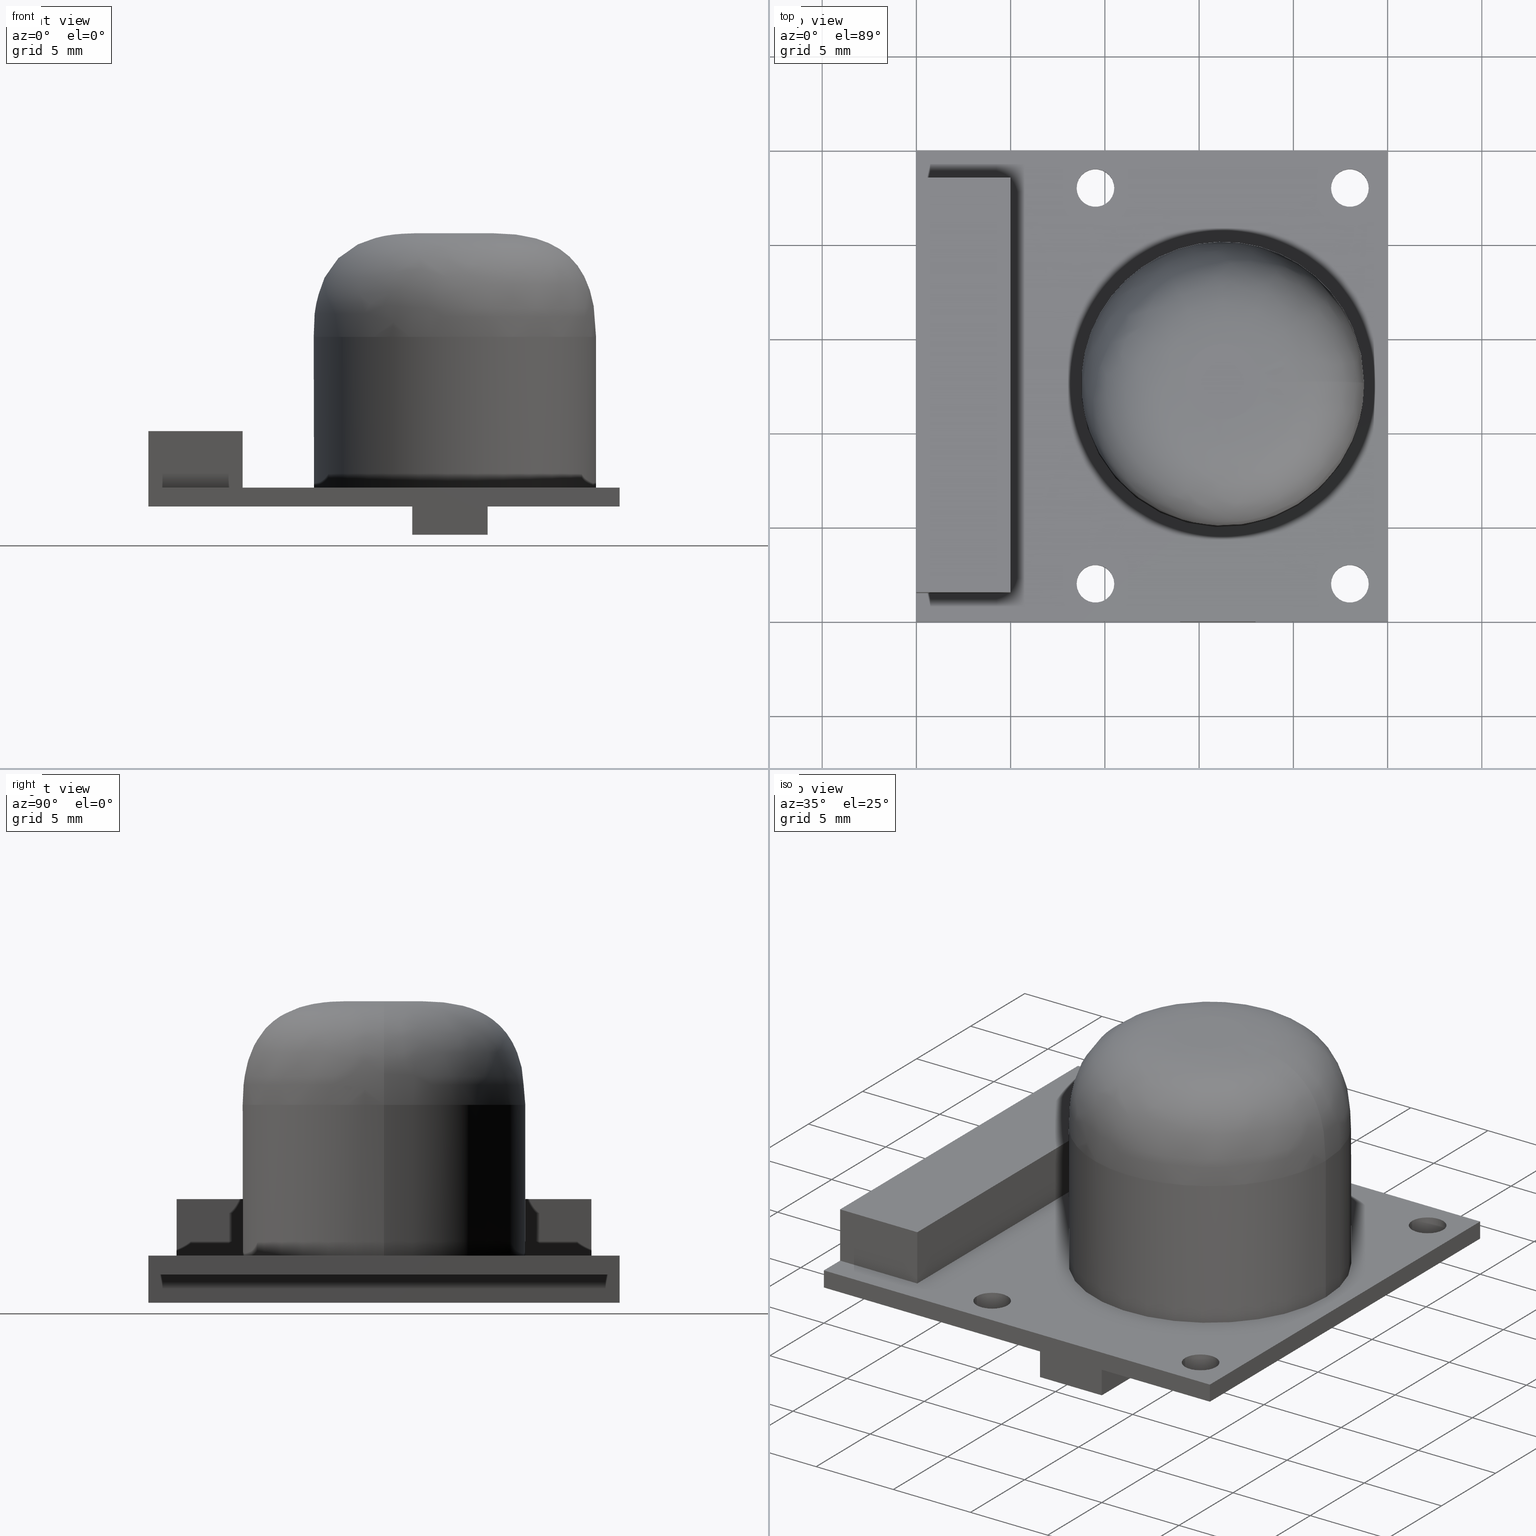
[diagram: canonical four-view strip — front | top / right | iso, engineering-drawing reading convention]
A machine part, canonical four-view strip (front | top / right | iso — engineering-drawing reading convention). The complete STEP part file that produces these views, byte-faithful:
ISO-10303-21;
HEADER;
/* Generated by software containing ST-Developer
 * from STEP Tools, Inc. (www.steptools.com) 
 */

FILE_DESCRIPTION(
/* description */ (''),
/* implementation_level */ '2;1');

FILE_NAME(
/* name */ 'IMX219.step',
/* time_stamp */ '2024-09-27T16:26:59+02:00',
/* author */ (''),
/* organization */ (''),
/* preprocessor_version */ 'ST-DEVELOPER v20',
/* originating_system */ 'Autodesk Translation Framework v13.20.0.188',

/* authorisation */ '');

FILE_SCHEMA (('AUTOMOTIVE_DESIGN { 1 0 10303 214 3 1 1 }'));
ENDSEC;

DATA;
#10=MECHANICAL_DESIGN_GEOMETRIC_PRESENTATION_REPRESENTATION('',(#13),#800);
#11=SHAPE_REPRESENTATION_RELATIONSHIP('SRR','None',#807,#12);
#12=ADVANCED_BREP_SHAPE_REPRESENTATION('',(#14),#799);
#13=STYLED_ITEM('',(#817),#14);
#14=MANIFOLD_SOLID_BREP('Body1',#405);
#15=FACE_BOUND('',#163,.T.);
#16=FACE_BOUND('',#164,.T.);
#17=FACE_BOUND('',#170,.T.);
#18=FACE_BOUND('',#171,.T.);
#19=FACE_BOUND('',#172,.T.);
#20=FACE_BOUND('',#173,.T.);
#21=FACE_BOUND('',#174,.T.);
#22=FACE_BOUND('',#184,.T.);
#23=FACE_BOUND('',#185,.T.);
#24=CIRCLE('',#421,7.5);
#25=CIRCLE('',#426,1.);
#26=CIRCLE('',#427,1.);
#27=CIRCLE('',#433,1.);
#28=CIRCLE('',#434,1.);
#29=CIRCLE('',#435,1.);
#30=CIRCLE('',#436,1.);
#31=CIRCLE('',#438,1.);
#32=CIRCLE('',#441,1.);
#33=LINE('',#697,#74);
#34=LINE('',#702,#75);
#35=LINE('',#704,#76);
#36=LINE('',#706,#77);
#37=LINE('',#707,#78);
#38=LINE('',#710,#79);
#39=LINE('',#712,#80);
#40=LINE('',#713,#81);
#41=LINE('',#716,#82);
#42=LINE('',#718,#83);
#43=LINE('',#719,#84);
#44=LINE('',#722,#85);
#45=LINE('',#724,#86);
#46=LINE('',#725,#87);
#47=LINE('',#733,#88);
#48=LINE('',#735,#89);
#49=LINE('',#737,#90);
#50=LINE('',#738,#91);
#51=LINE('',#741,#92);
#52=LINE('',#743,#93);
#53=LINE('',#744,#94);
#54=LINE('',#747,#95);
#55=LINE('',#749,#96);
#56=LINE('',#750,#97);
#57=LINE('',#752,#98);
#58=LINE('',#755,#99);
#59=LINE('',#757,#100);
#60=LINE('',#759,#101);
#61=LINE('',#761,#102);
#62=LINE('',#762,#103);
#63=LINE('',#773,#104);
#64=LINE('',#776,#105);
#65=LINE('',#779,#106);
#66=LINE('',#782,#107);
#67=LINE('',#785,#108);
#68=LINE('',#786,#109);
#69=LINE('',#787,#110);
#70=LINE('',#790,#111);
#71=LINE('',#791,#112);
#72=LINE('',#793,#113);
#73=LINE('',#794,#114);
#74=VECTOR('',#454,7.5);
#75=VECTOR('',#459,10.);
#76=VECTOR('',#460,10.);
#77=VECTOR('',#461,10.);
#78=VECTOR('',#462,10.);
#79=VECTOR('',#465,10.);
#80=VECTOR('',#466,10.);
#81=VECTOR('',#467,10.);
#82=VECTOR('',#470,10.);
#83=VECTOR('',#471,10.);
#84=VECTOR('',#472,10.);
#85=VECTOR('',#475,10.);
#86=VECTOR('',#476,10.);
#87=VECTOR('',#477,10.);
#88=VECTOR('',#484,10.);
#89=VECTOR('',#485,10.);
#90=VECTOR('',#486,10.);
#91=VECTOR('',#487,10.);
#92=VECTOR('',#490,10.);
#93=VECTOR('',#491,10.);
#94=VECTOR('',#492,10.);
#95=VECTOR('',#495,10.);
#96=VECTOR('',#496,10.);
#97=VECTOR('',#497,10.);
#98=VECTOR('',#500,10.);
#99=VECTOR('',#503,10.);
#100=VECTOR('',#504,10.);
#101=VECTOR('',#505,10.);
#102=VECTOR('',#506,10.);
#103=VECTOR('',#507,10.);
#104=VECTOR('',#518,1.);
#105=VECTOR('',#523,1.);
#106=VECTOR('',#526,1.);
#107=VECTOR('',#531,1.);
#108=VECTOR('',#534,10.);
#109=VECTOR('',#535,10.);
#110=VECTOR('',#536,10.);
#111=VECTOR('',#539,10.);
#112=VECTOR('',#540,10.);
#113=VECTOR('',#543,10.);
#114=VECTOR('',#544,10.);
#115=CYLINDRICAL_SURFACE('',#420,7.5);
#116=CYLINDRICAL_SURFACE('',#437,1.);
#117=CYLINDRICAL_SURFACE('',#439,1.);
#118=CYLINDRICAL_SURFACE('',#440,1.);
#119=CYLINDRICAL_SURFACE('',#442,1.);
#120=PLANE('',#419);
#121=PLANE('',#422);
#122=PLANE('',#423);
#123=PLANE('',#424);
#124=PLANE('',#425);
#125=PLANE('',#428);
#126=PLANE('',#429);
#127=PLANE('',#430);
#128=PLANE('',#431);
#129=PLANE('',#432);
#130=PLANE('',#443);
#131=PLANE('',#444);
#132=PLANE('',#445);
#133=PLANE('',#446);
#134=PLANE('',#447);
#135=FACE_OUTER_BOUND('',#156,.T.);
#136=FACE_OUTER_BOUND('',#157,.T.);
#137=FACE_OUTER_BOUND('',#158,.T.);
#138=FACE_OUTER_BOUND('',#159,.T.);
#139=FACE_OUTER_BOUND('',#160,.T.);
#140=FACE_OUTER_BOUND('',#161,.T.);
#141=FACE_OUTER_BOUND('',#162,.T.);
#142=FACE_OUTER_BOUND('',#165,.T.);
#143=FACE_OUTER_BOUND('',#166,.T.);
#144=FACE_OUTER_BOUND('',#167,.T.);
#145=FACE_OUTER_BOUND('',#168,.T.);
#146=FACE_OUTER_BOUND('',#169,.T.);
#147=FACE_OUTER_BOUND('',#175,.T.);
#148=FACE_OUTER_BOUND('',#176,.T.);
#149=FACE_OUTER_BOUND('',#177,.T.);
#150=FACE_OUTER_BOUND('',#178,.T.);
#151=FACE_OUTER_BOUND('',#179,.T.);
#152=FACE_OUTER_BOUND('',#180,.T.);
#153=FACE_OUTER_BOUND('',#181,.T.);
#154=FACE_OUTER_BOUND('',#182,.T.);
#155=FACE_OUTER_BOUND('',#183,.T.);
#156=EDGE_LOOP('',(#277,#278,#279,#280));
#157=EDGE_LOOP('',(#281));
#158=EDGE_LOOP('',(#282,#283,#284,#285));
#159=EDGE_LOOP('',(#286,#287,#288,#289));
#160=EDGE_LOOP('',(#290,#291,#292,#293));
#161=EDGE_LOOP('',(#294,#295,#296,#297));
#162=EDGE_LOOP('',(#298,#299,#300,#301));
#163=EDGE_LOOP('',(#302));
#164=EDGE_LOOP('',(#303));
#165=EDGE_LOOP('',(#304,#305,#306,#307));
#166=EDGE_LOOP('',(#308,#309,#310,#311));
#167=EDGE_LOOP('',(#312,#313,#314,#315));
#168=EDGE_LOOP('',(#316,#317,#318,#319));
#169=EDGE_LOOP('',(#320,#321,#322,#323,#324,#325,#326,#327));
#170=EDGE_LOOP('',(#328));
#171=EDGE_LOOP('',(#329));
#172=EDGE_LOOP('',(#330));
#173=EDGE_LOOP('',(#331));
#174=EDGE_LOOP('',(#332));
#175=EDGE_LOOP('',(#333,#334,#335,#336));
#176=EDGE_LOOP('',(#337,#338,#339,#340));
#177=EDGE_LOOP('',(#341,#342,#343,#344));
#178=EDGE_LOOP('',(#345,#346,#347,#348));
#179=EDGE_LOOP('',(#349,#350,#351,#352,#353,#354,#355,#356));
#180=EDGE_LOOP('',(#357,#358,#359,#360));
#181=EDGE_LOOP('',(#361,#362,#363,#364,#365,#366,#367,#368));
#182=EDGE_LOOP('',(#369,#370,#371,#372,#373,#374,#375,#376));
#183=EDGE_LOOP('',(#377,#378,#379,#380));
#184=EDGE_LOOP('',(#381));
#185=EDGE_LOOP('',(#382));
#186=B_SPLINE_CURVE_WITH_KNOTS('',3,(#654,#655,#656,#657,#658,#659),
 .UNSPECIFIED.,.F.,.F.,(4,1,1,4),(0.,0.285714285714286,0.571428571428571,
1.),.UNSPECIFIED.);
#187=B_SPLINE_CURVE_WITH_KNOTS('',3,(#660,#661,#662,#663,#664,#665,#666,
#667,#668,#669,#670,#671,#672,#673,#674,#675,#676),.UNSPECIFIED.,.T.,.F.,
(4,1,1,1,1,1,1,1,1,1,1,1,1,1,4),(0.,0.0893568644865318,0.178713728973064,
0.268070593459595,0.357427457946127,0.47656994392817,0.536141186919191,
0.655283672901233,0.714854915892254,0.804211780378786,0.893568644865318,
0.98292550935185,1.07228237383838,1.16163923832491,1.25099610281145),
 .UNSPECIFIED.);
#188=B_SPLINE_CURVE_WITH_KNOTS('',3,(#677,#678,#679,#680,#681,#682,#683,
#684,#685,#686,#687,#688,#689,#690,#691,#692,#693),.UNSPECIFIED.,.T.,.F.,
(4,1,1,1,1,1,1,1,1,1,1,1,1,1,4),(-1.25099610281145,-1.16163923832491,-1.07228237383838,
-0.98292550935185,-0.893568644865318,-0.804211780378786,-0.714854915892254,
-0.655283672901233,-0.536141186919191,-0.47656994392817,-0.357427457946127,
-0.268070593459595,-0.178713728973064,-0.0893568644865318,0.),
 .UNSPECIFIED.);
#189=VERTEX_POINT('',#652);
#190=VERTEX_POINT('',#653);
#191=VERTEX_POINT('',#696);
#192=VERTEX_POINT('',#700);
#193=VERTEX_POINT('',#701);
#194=VERTEX_POINT('',#703);
#195=VERTEX_POINT('',#705);
#196=VERTEX_POINT('',#709);
#197=VERTEX_POINT('',#711);
#198=VERTEX_POINT('',#715);
#199=VERTEX_POINT('',#717);
#200=VERTEX_POINT('',#721);
#201=VERTEX_POINT('',#723);
#202=VERTEX_POINT('',#726);
#203=VERTEX_POINT('',#728);
#204=VERTEX_POINT('',#731);
#205=VERTEX_POINT('',#732);
#206=VERTEX_POINT('',#734);
#207=VERTEX_POINT('',#736);
#208=VERTEX_POINT('',#740);
#209=VERTEX_POINT('',#742);
#210=VERTEX_POINT('',#746);
#211=VERTEX_POINT('',#748);
#212=VERTEX_POINT('',#754);
#213=VERTEX_POINT('',#756);
#214=VERTEX_POINT('',#758);
#215=VERTEX_POINT('',#760);
#216=VERTEX_POINT('',#763);
#217=VERTEX_POINT('',#765);
#218=VERTEX_POINT('',#767);
#219=VERTEX_POINT('',#769);
#220=VERTEX_POINT('',#772);
#221=VERTEX_POINT('',#778);
#222=VERTEX_POINT('',#784);
#223=VERTEX_POINT('',#789);
#224=EDGE_CURVE('',#189,#190,#186,.T.);
#225=EDGE_CURVE('',#190,#190,#187,.T.);
#226=EDGE_CURVE('',#189,#189,#188,.T.);
#227=EDGE_CURVE('',#189,#191,#33,.T.);
#228=EDGE_CURVE('',#191,#191,#24,.T.);
#229=EDGE_CURVE('',#192,#193,#34,.T.);
#230=EDGE_CURVE('',#194,#193,#35,.T.);
#231=EDGE_CURVE('',#194,#195,#36,.T.);
#232=EDGE_CURVE('',#192,#195,#37,.T.);
#233=EDGE_CURVE('',#193,#196,#38,.T.);
#234=EDGE_CURVE('',#197,#196,#39,.T.);
#235=EDGE_CURVE('',#197,#194,#40,.T.);
#236=EDGE_CURVE('',#196,#198,#41,.T.);
#237=EDGE_CURVE('',#199,#198,#42,.T.);
#238=EDGE_CURVE('',#199,#197,#43,.T.);
#239=EDGE_CURVE('',#200,#195,#44,.T.);
#240=EDGE_CURVE('',#201,#200,#45,.T.);
#241=EDGE_CURVE('',#192,#201,#46,.T.);
#242=EDGE_CURVE('',#202,#202,#25,.T.);
#243=EDGE_CURVE('',#203,#203,#26,.T.);
#244=EDGE_CURVE('',#204,#205,#47,.T.);
#245=EDGE_CURVE('',#204,#206,#48,.T.);
#246=EDGE_CURVE('',#207,#206,#49,.T.);
#247=EDGE_CURVE('',#205,#207,#50,.T.);
#248=EDGE_CURVE('',#205,#208,#51,.T.);
#249=EDGE_CURVE('',#209,#207,#52,.T.);
#250=EDGE_CURVE('',#208,#209,#53,.T.);
#251=EDGE_CURVE('',#208,#210,#54,.T.);
#252=EDGE_CURVE('',#211,#209,#55,.T.);
#253=EDGE_CURVE('',#210,#211,#56,.T.);
#254=EDGE_CURVE('',#206,#211,#57,.T.);
#255=EDGE_CURVE('',#210,#212,#58,.T.);
#256=EDGE_CURVE('',#212,#213,#59,.T.);
#257=EDGE_CURVE('',#213,#214,#60,.T.);
#258=EDGE_CURVE('',#214,#215,#61,.T.);
#259=EDGE_CURVE('',#215,#204,#62,.T.);
#260=EDGE_CURVE('',#216,#216,#27,.T.);
#261=EDGE_CURVE('',#217,#217,#28,.T.);
#262=EDGE_CURVE('',#218,#218,#29,.T.);
#263=EDGE_CURVE('',#219,#219,#30,.T.);
#264=EDGE_CURVE('',#216,#220,#63,.T.);
#265=EDGE_CURVE('',#220,#220,#31,.T.);
#266=EDGE_CURVE('',#217,#203,#64,.T.);
#267=EDGE_CURVE('',#218,#221,#65,.T.);
#268=EDGE_CURVE('',#221,#221,#32,.T.);
#269=EDGE_CURVE('',#219,#202,#66,.T.);
#270=EDGE_CURVE('',#222,#198,#67,.T.);
#271=EDGE_CURVE('',#201,#215,#68,.T.);
#272=EDGE_CURVE('',#222,#214,#69,.T.);
#273=EDGE_CURVE('',#223,#222,#70,.T.);
#274=EDGE_CURVE('',#223,#213,#71,.T.);
#275=EDGE_CURVE('',#199,#223,#72,.T.);
#276=EDGE_CURVE('',#200,#212,#73,.T.);
#277=ORIENTED_EDGE('',*,*,#224,.T.);
#278=ORIENTED_EDGE('',*,*,#225,.T.);
#279=ORIENTED_EDGE('',*,*,#224,.F.);
#280=ORIENTED_EDGE('',*,*,#226,.T.);
#281=ORIENTED_EDGE('',*,*,#225,.F.);
#282=ORIENTED_EDGE('',*,*,#226,.F.);
#283=ORIENTED_EDGE('',*,*,#227,.T.);
#284=ORIENTED_EDGE('',*,*,#228,.F.);
#285=ORIENTED_EDGE('',*,*,#227,.F.);
#286=ORIENTED_EDGE('',*,*,#229,.T.);
#287=ORIENTED_EDGE('',*,*,#230,.F.);
#288=ORIENTED_EDGE('',*,*,#231,.T.);
#289=ORIENTED_EDGE('',*,*,#232,.F.);
#290=ORIENTED_EDGE('',*,*,#233,.T.);
#291=ORIENTED_EDGE('',*,*,#234,.F.);
#292=ORIENTED_EDGE('',*,*,#235,.T.);
#293=ORIENTED_EDGE('',*,*,#230,.T.);
#294=ORIENTED_EDGE('',*,*,#236,.T.);
#295=ORIENTED_EDGE('',*,*,#237,.F.);
#296=ORIENTED_EDGE('',*,*,#238,.T.);
#297=ORIENTED_EDGE('',*,*,#234,.T.);
#298=ORIENTED_EDGE('',*,*,#232,.T.);
#299=ORIENTED_EDGE('',*,*,#239,.F.);
#300=ORIENTED_EDGE('',*,*,#240,.F.);
#301=ORIENTED_EDGE('',*,*,#241,.F.);
#302=ORIENTED_EDGE('',*,*,#242,.F.);
#303=ORIENTED_EDGE('',*,*,#243,.F.);
#304=ORIENTED_EDGE('',*,*,#244,.F.);
#305=ORIENTED_EDGE('',*,*,#245,.T.);
#306=ORIENTED_EDGE('',*,*,#246,.F.);
#307=ORIENTED_EDGE('',*,*,#247,.F.);
#308=ORIENTED_EDGE('',*,*,#248,.F.);
#309=ORIENTED_EDGE('',*,*,#247,.T.);
#310=ORIENTED_EDGE('',*,*,#249,.F.);
#311=ORIENTED_EDGE('',*,*,#250,.F.);
#312=ORIENTED_EDGE('',*,*,#251,.F.);
#313=ORIENTED_EDGE('',*,*,#250,.T.);
#314=ORIENTED_EDGE('',*,*,#252,.F.);
#315=ORIENTED_EDGE('',*,*,#253,.F.);
#316=ORIENTED_EDGE('',*,*,#252,.T.);
#317=ORIENTED_EDGE('',*,*,#249,.T.);
#318=ORIENTED_EDGE('',*,*,#246,.T.);
#319=ORIENTED_EDGE('',*,*,#254,.T.);
#320=ORIENTED_EDGE('',*,*,#244,.T.);
#321=ORIENTED_EDGE('',*,*,#248,.T.);
#322=ORIENTED_EDGE('',*,*,#251,.T.);
#323=ORIENTED_EDGE('',*,*,#255,.T.);
#324=ORIENTED_EDGE('',*,*,#256,.T.);
#325=ORIENTED_EDGE('',*,*,#257,.T.);
#326=ORIENTED_EDGE('',*,*,#258,.T.);
#327=ORIENTED_EDGE('',*,*,#259,.T.);
#328=ORIENTED_EDGE('',*,*,#260,.T.);
#329=ORIENTED_EDGE('',*,*,#261,.T.);
#330=ORIENTED_EDGE('',*,*,#262,.T.);
#331=ORIENTED_EDGE('',*,*,#263,.T.);
#332=ORIENTED_EDGE('',*,*,#228,.T.);
#333=ORIENTED_EDGE('',*,*,#260,.F.);
#334=ORIENTED_EDGE('',*,*,#264,.T.);
#335=ORIENTED_EDGE('',*,*,#265,.T.);
#336=ORIENTED_EDGE('',*,*,#264,.F.);
#337=ORIENTED_EDGE('',*,*,#261,.F.);
#338=ORIENTED_EDGE('',*,*,#266,.T.);
#339=ORIENTED_EDGE('',*,*,#243,.T.);
#340=ORIENTED_EDGE('',*,*,#266,.F.);
#341=ORIENTED_EDGE('',*,*,#262,.F.);
#342=ORIENTED_EDGE('',*,*,#267,.T.);
#343=ORIENTED_EDGE('',*,*,#268,.T.);
#344=ORIENTED_EDGE('',*,*,#267,.F.);
#345=ORIENTED_EDGE('',*,*,#263,.F.);
#346=ORIENTED_EDGE('',*,*,#269,.T.);
#347=ORIENTED_EDGE('',*,*,#242,.T.);
#348=ORIENTED_EDGE('',*,*,#269,.F.);
#349=ORIENTED_EDGE('',*,*,#270,.T.);
#350=ORIENTED_EDGE('',*,*,#236,.F.);
#351=ORIENTED_EDGE('',*,*,#233,.F.);
#352=ORIENTED_EDGE('',*,*,#229,.F.);
#353=ORIENTED_EDGE('',*,*,#241,.T.);
#354=ORIENTED_EDGE('',*,*,#271,.T.);
#355=ORIENTED_EDGE('',*,*,#258,.F.);
#356=ORIENTED_EDGE('',*,*,#272,.F.);
#357=ORIENTED_EDGE('',*,*,#273,.T.);
#358=ORIENTED_EDGE('',*,*,#272,.T.);
#359=ORIENTED_EDGE('',*,*,#257,.F.);
#360=ORIENTED_EDGE('',*,*,#274,.F.);
#361=ORIENTED_EDGE('',*,*,#239,.T.);
#362=ORIENTED_EDGE('',*,*,#231,.F.);
#363=ORIENTED_EDGE('',*,*,#235,.F.);
#364=ORIENTED_EDGE('',*,*,#238,.F.);
#365=ORIENTED_EDGE('',*,*,#275,.T.);
#366=ORIENTED_EDGE('',*,*,#274,.T.);
#367=ORIENTED_EDGE('',*,*,#256,.F.);
#368=ORIENTED_EDGE('',*,*,#276,.F.);
#369=ORIENTED_EDGE('',*,*,#240,.T.);
#370=ORIENTED_EDGE('',*,*,#276,.T.);
#371=ORIENTED_EDGE('',*,*,#255,.F.);
#372=ORIENTED_EDGE('',*,*,#253,.T.);
#373=ORIENTED_EDGE('',*,*,#254,.F.);
#374=ORIENTED_EDGE('',*,*,#245,.F.);
#375=ORIENTED_EDGE('',*,*,#259,.F.);
#376=ORIENTED_EDGE('',*,*,#271,.F.);
#377=ORIENTED_EDGE('',*,*,#237,.T.);
#378=ORIENTED_EDGE('',*,*,#270,.F.);
#379=ORIENTED_EDGE('',*,*,#273,.F.);
#380=ORIENTED_EDGE('',*,*,#275,.F.);
#381=ORIENTED_EDGE('',*,*,#268,.F.);
#382=ORIENTED_EDGE('',*,*,#265,.F.);
#383=B_SPLINE_SURFACE_WITH_KNOTS('',3,3,((#550,#551,#552,#553,#554,#555,
#556,#557,#558,#559,#560,#561,#562,#563,#564,#565,#566),(#567,#568,#569,
#570,#571,#572,#573,#574,#575,#576,#577,#578,#579,#580,#581,#582,#583),
(#584,#585,#586,#587,#588,#589,#590,#591,#592,#593,#594,#595,#596,#597,
#598,#599,#600),(#601,#602,#603,#604,#605,#606,#607,#608,#609,#610,#611,
#612,#613,#614,#615,#616,#617),(#618,#619,#620,#621,#622,#623,#624,#625,
#626,#627,#628,#629,#630,#631,#632,#633,#634),(#635,#636,#637,#638,#639,
#640,#641,#642,#643,#644,#645,#646,#647,#648,#649,#650,#651)),
 .UNSPECIFIED.,.F.,.T.,.F.,(4,1,1,4),(4,1,1,1,1,1,1,1,1,1,1,1,1,1,4),(0.,
0.285714285714286,0.571428571428571,1.),(0.,0.0893568644865318,0.178713728973064,
0.268070593459595,0.357427457946127,0.47656994392817,0.536141186919191,
0.655283672901233,0.714854915892254,0.804211780378786,0.893568644865318,
0.98292550935185,1.07228237383838,1.16163923832491,1.25099610281145),
 .UNSPECIFIED.);
#384=ADVANCED_FACE('',(#135),#383,.T.);
#385=ADVANCED_FACE('',(#136),#120,.T.);
#386=ADVANCED_FACE('',(#137),#115,.T.);
#387=ADVANCED_FACE('',(#138),#121,.T.);
#388=ADVANCED_FACE('',(#139),#122,.T.);
#389=ADVANCED_FACE('',(#140),#123,.T.);
#390=ADVANCED_FACE('',(#141,#15,#16),#124,.F.);
#391=ADVANCED_FACE('',(#142),#125,.T.);
#392=ADVANCED_FACE('',(#143),#126,.T.);
#393=ADVANCED_FACE('',(#144),#127,.T.);
#394=ADVANCED_FACE('',(#145),#128,.T.);
#395=ADVANCED_FACE('',(#146,#17,#18,#19,#20,#21),#129,.T.);
#396=ADVANCED_FACE('',(#147),#116,.F.);
#397=ADVANCED_FACE('',(#148),#117,.F.);
#398=ADVANCED_FACE('',(#149),#118,.F.);
#399=ADVANCED_FACE('',(#150),#119,.F.);
#400=ADVANCED_FACE('',(#151),#130,.T.);
#401=ADVANCED_FACE('',(#152),#131,.T.);
#402=ADVANCED_FACE('',(#153),#132,.T.);
#403=ADVANCED_FACE('',(#154),#133,.T.);
#404=ADVANCED_FACE('',(#155,#22,#23),#134,.F.);
#405=CLOSED_SHELL('',(#384,#385,#386,#387,#388,#389,#390,#391,#392,#393,
#394,#395,#396,#397,#398,#399,#400,#401,#402,#403,#404));
#406=DERIVED_UNIT_ELEMENT(#408,1.);
#407=DERIVED_UNIT_ELEMENT(#802,-3.);
#408=(
MASS_UNIT()
NAMED_UNIT(*)
SI_UNIT(.KILO.,.GRAM.)
);
#409=DERIVED_UNIT((#406,#407));
#410=MEASURE_REPRESENTATION_ITEM('density measure',
POSITIVE_RATIO_MEASURE(7850.),#409);
#411=PROPERTY_DEFINITION_REPRESENTATION(#416,#413);
#412=PROPERTY_DEFINITION_REPRESENTATION(#417,#414);
#413=REPRESENTATION('material name',(#415),#799);
#414=REPRESENTATION('density',(#410),#799);
#415=DESCRIPTIVE_REPRESENTATION_ITEM('Steel','Steel');
#416=PROPERTY_DEFINITION('material property','material name',#809);
#417=PROPERTY_DEFINITION('material property','density of part',#809);
#418=AXIS2_PLACEMENT_3D('',#549,#448,#449);
#419=AXIS2_PLACEMENT_3D('',#694,#450,#451);
#420=AXIS2_PLACEMENT_3D('',#695,#452,#453);
#421=AXIS2_PLACEMENT_3D('',#698,#455,#456);
#422=AXIS2_PLACEMENT_3D('',#699,#457,#458);
#423=AXIS2_PLACEMENT_3D('',#708,#463,#464);
#424=AXIS2_PLACEMENT_3D('',#714,#468,#469);
#425=AXIS2_PLACEMENT_3D('',#720,#473,#474);
#426=AXIS2_PLACEMENT_3D('',#727,#478,#479);
#427=AXIS2_PLACEMENT_3D('',#729,#480,#481);
#428=AXIS2_PLACEMENT_3D('',#730,#482,#483);
#429=AXIS2_PLACEMENT_3D('',#739,#488,#489);
#430=AXIS2_PLACEMENT_3D('',#745,#493,#494);
#431=AXIS2_PLACEMENT_3D('',#751,#498,#499);
#432=AXIS2_PLACEMENT_3D('',#753,#501,#502);
#433=AXIS2_PLACEMENT_3D('',#764,#508,#509);
#434=AXIS2_PLACEMENT_3D('',#766,#510,#511);
#435=AXIS2_PLACEMENT_3D('',#768,#512,#513);
#436=AXIS2_PLACEMENT_3D('',#770,#514,#515);
#437=AXIS2_PLACEMENT_3D('',#771,#516,#517);
#438=AXIS2_PLACEMENT_3D('',#774,#519,#520);
#439=AXIS2_PLACEMENT_3D('',#775,#521,#522);
#440=AXIS2_PLACEMENT_3D('',#777,#524,#525);
#441=AXIS2_PLACEMENT_3D('',#780,#527,#528);
#442=AXIS2_PLACEMENT_3D('',#781,#529,#530);
#443=AXIS2_PLACEMENT_3D('',#783,#532,#533);
#444=AXIS2_PLACEMENT_3D('',#788,#537,#538);
#445=AXIS2_PLACEMENT_3D('',#792,#541,#542);
#446=AXIS2_PLACEMENT_3D('',#795,#545,#546);
#447=AXIS2_PLACEMENT_3D('',#796,#547,#548);
#448=DIRECTION('axis',(0.,0.,1.));
#449=DIRECTION('refdir',(1.,0.,0.));
#450=DIRECTION('center_axis',(0.,0.,1.));
#451=DIRECTION('ref_axis',(-1.,0.,0.));
#452=DIRECTION('center_axis',(0.,0.,1.));
#453=DIRECTION('ref_axis',(-1.,0.,0.));
#454=DIRECTION('',(0.,0.,-1.));
#455=DIRECTION('center_axis',(0.,0.,-1.));
#456=DIRECTION('ref_axis',(-1.,0.,0.));
#457=DIRECTION('center_axis',(-1.,0.,7.40148683083438E-16));
#458=DIRECTION('ref_axis',(7.40148683083438E-16,0.,1.));
#459=DIRECTION('',(-7.40148683083438E-16,0.,-1.));
#460=DIRECTION('',(0.,1.,0.));
#461=DIRECTION('',(7.40148683083438E-16,0.,1.));
#462=DIRECTION('',(0.,-1.,0.));
#463=DIRECTION('center_axis',(0.,0.,-1.));
#464=DIRECTION('ref_axis',(-1.,0.,0.));
#465=DIRECTION('',(1.,0.,0.));
#466=DIRECTION('',(0.,1.,0.));
#467=DIRECTION('',(-1.,0.,0.));
#468=DIRECTION('center_axis',(1.,0.,0.));
#469=DIRECTION('ref_axis',(0.,0.,-1.));
#470=DIRECTION('',(0.,0.,1.));
#471=DIRECTION('',(0.,1.,0.));
#472=DIRECTION('',(0.,0.,-1.));
#473=DIRECTION('center_axis',(0.,0.,1.));
#474=DIRECTION('ref_axis',(1.,0.,0.));
#475=DIRECTION('',(1.,0.,0.));
#476=DIRECTION('',(0.,-1.,0.));
#477=DIRECTION('',(-1.,0.,0.));
#478=DIRECTION('center_axis',(0.,0.,-1.));
#479=DIRECTION('ref_axis',(1.,0.,0.));
#480=DIRECTION('center_axis',(0.,0.,-1.));
#481=DIRECTION('ref_axis',(1.,0.,0.));
#482=DIRECTION('center_axis',(0.,1.,0.));
#483=DIRECTION('ref_axis',(-1.,0.,0.));
#484=DIRECTION('',(1.,0.,0.));
#485=DIRECTION('',(0.,0.,1.));
#486=DIRECTION('',(-1.,0.,0.));
#487=DIRECTION('',(0.,0.,1.));
#488=DIRECTION('center_axis',(1.,0.,0.));
#489=DIRECTION('ref_axis',(0.,1.,0.));
#490=DIRECTION('',(0.,-1.,0.));
#491=DIRECTION('',(0.,1.,0.));
#492=DIRECTION('',(0.,0.,1.));
#493=DIRECTION('center_axis',(0.,-1.,0.));
#494=DIRECTION('ref_axis',(1.,0.,0.));
#495=DIRECTION('',(-1.,0.,0.));
#496=DIRECTION('',(1.,0.,0.));
#497=DIRECTION('',(0.,0.,1.));
#498=DIRECTION('center_axis',(0.,0.,1.));
#499=DIRECTION('ref_axis',(1.,0.,0.));
#500=DIRECTION('',(0.,-1.,0.));
#501=DIRECTION('center_axis',(0.,0.,1.));
#502=DIRECTION('ref_axis',(1.,0.,0.));
#503=DIRECTION('',(0.,-1.,0.));
#504=DIRECTION('',(1.,0.,0.));
#505=DIRECTION('',(0.,1.,0.));
#506=DIRECTION('',(-1.,0.,0.));
#507=DIRECTION('',(0.,-1.,0.));
#508=DIRECTION('center_axis',(0.,0.,-1.));
#509=DIRECTION('ref_axis',(1.,0.,0.));
#510=DIRECTION('center_axis',(0.,0.,-1.));
#511=DIRECTION('ref_axis',(1.,0.,0.));
#512=DIRECTION('center_axis',(0.,0.,-1.));
#513=DIRECTION('ref_axis',(1.,0.,0.));
#514=DIRECTION('center_axis',(0.,0.,-1.));
#515=DIRECTION('ref_axis',(1.,0.,0.));
#516=DIRECTION('center_axis',(0.,0.,1.));
#517=DIRECTION('ref_axis',(1.,0.,0.));
#518=DIRECTION('',(0.,0.,-1.));
#519=DIRECTION('center_axis',(0.,0.,-1.));
#520=DIRECTION('ref_axis',(1.,0.,0.));
#521=DIRECTION('center_axis',(0.,0.,1.));
#522=DIRECTION('ref_axis',(1.,0.,0.));
#523=DIRECTION('',(0.,0.,-1.));
#524=DIRECTION('center_axis',(0.,0.,1.));
#525=DIRECTION('ref_axis',(1.,0.,0.));
#526=DIRECTION('',(0.,0.,-1.));
#527=DIRECTION('center_axis',(0.,0.,-1.));
#528=DIRECTION('ref_axis',(1.,0.,0.));
#529=DIRECTION('center_axis',(0.,0.,1.));
#530=DIRECTION('ref_axis',(1.,0.,0.));
#531=DIRECTION('',(0.,0.,-1.));
#532=DIRECTION('center_axis',(0.,1.,0.));
#533=DIRECTION('ref_axis',(-1.,0.,0.));
#534=DIRECTION('',(-1.,0.,0.));
#535=DIRECTION('',(0.,0.,1.));
#536=DIRECTION('',(0.,0.,1.));
#537=DIRECTION('center_axis',(1.,0.,0.));
#538=DIRECTION('ref_axis',(0.,1.,0.));
#539=DIRECTION('',(0.,1.,0.));
#540=DIRECTION('',(0.,0.,1.));
#541=DIRECTION('center_axis',(0.,-1.,0.));
#542=DIRECTION('ref_axis',(1.,0.,0.));
#543=DIRECTION('',(1.,0.,0.));
#544=DIRECTION('',(0.,0.,1.));
#545=DIRECTION('center_axis',(-1.,0.,0.));
#546=DIRECTION('ref_axis',(0.,-1.,0.));
#547=DIRECTION('center_axis',(0.,0.,1.));
#548=DIRECTION('ref_axis',(1.,0.,0.));
#549=CARTESIAN_POINT('',(0.,0.,0.));
#550=CARTESIAN_POINT('Ctrl Pts',(23.75,12.4999999999976,9.00012345593103));
#551=CARTESIAN_POINT('Ctrl Pts',(23.75,11.3780080554362,9.00012345593103));
#552=CARTESIAN_POINT('Ctrl Pts',(23.2384415317119,9.13521332492933,9.00012345593103));
#553=CARTESIAN_POINT('Ctrl Pts',(21.0848338404302,6.43494103360139,9.00012345593103));
#554=CARTESIAN_POINT('Ctrl Pts',(17.9769990239515,4.9399435090646,9.00012345593104));
#555=CARTESIAN_POINT('Ctrl Pts',(14.1367345242791,4.934004193647,9.00012345593104));
#556=CARTESIAN_POINT('Ctrl Pts',(11.0939514149011,6.69289646328218,9.00012345593104));
#557=CARTESIAN_POINT('Ctrl Pts',(8.96000188061562,9.82300813379407,9.00012345593104));
#558=CARTESIAN_POINT('Ctrl Pts',(8.49635530641897,12.9105727209406,9.00012345593104));
#559=CARTESIAN_POINT('Ctrl Pts',(9.50328421254499,16.1657551917326,9.00012345593104));
#560=CARTESIAN_POINT('Ctrl Pts',(11.413680117459,18.5637103178407,9.00012345593103));
#561=CARTESIAN_POINT('Ctrl Pts',(14.5251208196525,20.0617864158509,9.00012345593103));
#562=CARTESIAN_POINT('Ctrl Pts',(17.9757870793582,20.0614658012309,9.00012345593103));
#563=CARTESIAN_POINT('Ctrl Pts',(21.0865112150804,18.5649217446474,9.00012345593103));
#564=CARTESIAN_POINT('Ctrl Pts',(23.2380933332563,15.8651513393549,9.00012345593103));
#565=CARTESIAN_POINT('Ctrl Pts',(23.75,13.621991944559,9.00012345593103));
#566=CARTESIAN_POINT('Ctrl Pts',(23.75,12.4999999999976,9.00012345593103));
#567=CARTESIAN_POINT('Ctrl Pts',(23.75,12.4999999999976,10.1269778730739));
#568=CARTESIAN_POINT('Ctrl Pts',(23.75,11.3782080214578,10.1269778730739));
#569=CARTESIAN_POINT('Ctrl Pts',(23.2381893439298,9.13541537100962,10.1269778730739));
#570=CARTESIAN_POINT('Ctrl Pts',(21.0846156417791,6.43539781433147,10.1269778730739));
#571=CARTESIAN_POINT('Ctrl Pts',(17.9768381022483,4.9404147346711,10.1269778730739));
#572=CARTESIAN_POINT('Ctrl Pts',(14.1369250446192,4.93454978635941,10.1269778730739));
#573=CARTESIAN_POINT('Ctrl Pts',(11.0943162395194,6.69326988996195,10.1269778730739));
#574=CARTESIAN_POINT('Ctrl Pts',(8.96058352661587,9.82316425105418,10.1269778730739));
#575=CARTESIAN_POINT('Ctrl Pts',(8.49683982482968,12.9106836996578,10.1269778730739));
#576=CARTESIAN_POINT('Ctrl Pts',(9.50373193420757,16.165424871024,10.1269778730739));
#577=CARTESIAN_POINT('Ctrl Pts',(11.4139256309563,18.5632579012269,10.1269778730739));
#578=CARTESIAN_POINT('Ctrl Pts',(14.5252697329834,20.0611823562546,10.1269778730739));
#579=CARTESIAN_POINT('Ctrl Pts',(17.9758115350933,20.0609538814398,10.1269778730739));
#580=CARTESIAN_POINT('Ctrl Pts',(21.0862313079238,18.5645061305321,10.1269778730739));
#581=CARTESIAN_POINT('Ctrl Pts',(23.2378853825962,15.8649381156609,10.1269778730739));
#582=CARTESIAN_POINT('Ctrl Pts',(23.75,13.6217919785374,10.1269778730739));
#583=CARTESIAN_POINT('Ctrl Pts',(23.75,12.4999999999976,10.1269778730739));
#584=CARTESIAN_POINT('Ctrl Pts',(23.4571486794834,12.4999999999976,11.946979952644));
#585=CARTESIAN_POINT('Ctrl Pts',(23.4571486794834,11.4220180398044,11.946979952644));
#586=CARTESIAN_POINT('Ctrl Pts',(22.9653130498092,9.26679944014946,11.946979952644));
#587=CARTESIAN_POINT('Ctrl Pts',(20.8958308903071,6.67221870477777,11.946979952644));
#588=CARTESIAN_POINT('Ctrl Pts',(17.9094044237523,5.2356105421191,11.946979952644));
#589=CARTESIAN_POINT('Ctrl Pts',(14.2194411752572,5.22997742177051,11.946979952644));
#590=CARTESIAN_POINT('Ctrl Pts',(11.2956432478756,6.92001852896159,11.946979952644));
#591=CARTESIAN_POINT('Ctrl Pts',(9.24523428324249,9.9276921560593,11.946979952644));
#592=CARTESIAN_POINT('Ctrl Pts',(8.79959462544737,12.8946520065062,11.946979952644));
#593=CARTESIAN_POINT('Ctrl Pts',(9.76716938152329,16.0222890756629,11.946979952644));
#594=CARTESIAN_POINT('Ctrl Pts',(11.6027683769925,18.3264896663455,11.946979952644));
#595=CARTESIAN_POINT('Ctrl Pts',(14.5926206517711,19.7659191499403,11.946979952644));
#596=CARTESIAN_POINT('Ctrl Pts',(17.9084249709343,19.7657030905943,11.946979952644));
#597=CARTESIAN_POINT('Ctrl Pts',(20.8973811295975,18.3276905519108,11.946979952644));
#598=CARTESIAN_POINT('Ctrl Pts',(22.9650226348253,15.73353982009,11.946979952644));
#599=CARTESIAN_POINT('Ctrl Pts',(23.4571486794834,13.5779819601908,11.946979952644));
#600=CARTESIAN_POINT('Ctrl Pts',(23.4571486794834,12.4999999999976,11.946979952644));
#601=CARTESIAN_POINT('Ctrl Pts',(21.9546102441624,12.4999999999976,13.9556942802316));
#602=CARTESIAN_POINT('Ctrl Pts',(21.9546102441624,11.6465596679815,13.9556942802316));
#603=CARTESIAN_POINT('Ctrl Pts',(21.565557721953,9.94065664617299,13.9556942802316));
#604=CARTESIAN_POINT('Ctrl Pts',(19.9274858062261,7.8867430129286,13.9556942802316));
#605=CARTESIAN_POINT('Ctrl Pts',(17.5636104308845,6.74962326457161,13.9556942802316));
#606=CARTESIAN_POINT('Ctrl Pts',(14.6425841859565,6.74509206052,13.9556942802316));
#607=CARTESIAN_POINT('Ctrl Pts',(12.3281665781194,8.08296303030604,13.9556942802316));
#608=CARTESIAN_POINT('Ctrl Pts',(10.7050133292744,10.4638119325055,13.9556942802316));
#609=CARTESIAN_POINT('Ctrl Pts',(10.3523747879744,12.8122672416433,13.9556942802316));
#610=CARTESIAN_POINT('Ctrl Pts',(11.1182664806463,15.2882880167021,13.9556942802316));
#611=CARTESIAN_POINT('Ctrl Pts',(12.5713788660809,17.1122303827486,13.9556942802316));
#612=CARTESIAN_POINT('Ctrl Pts',(14.9380041612294,18.2517169651497,13.9556942802316));
#613=CARTESIAN_POINT('Ctrl Pts',(17.5626545237547,18.2514561597537,13.9556942802316));
#614=CARTESIAN_POINT('Ctrl Pts',(19.9287729880205,17.1131450451263,13.9556942802316));
#615=CARTESIAN_POINT('Ctrl Pts',(21.5652847434704,15.0596227780028,13.9556942802316));
#616=CARTESIAN_POINT('Ctrl Pts',(21.9546102441624,13.3534403320137,13.9556942802316));
#617=CARTESIAN_POINT('Ctrl Pts',(21.9546102441624,12.4999999999976,13.9556942802316));
#618=CARTESIAN_POINT('Ctrl Pts',(19.9404050816453,12.4999999999976,14.5));
#619=CARTESIAN_POINT('Ctrl Pts',(19.9404050816453,11.9486489245015,14.5));
#620=CARTESIAN_POINT('Ctrl Pts',(19.6877705973444,10.8450803706993,14.5));
#621=CARTESIAN_POINT('Ctrl Pts',(18.6282033017652,9.51732993949954,14.5));
#622=CARTESIAN_POINT('Ctrl Pts',(17.0991896857868,8.78176311233292,14.5));
#623=CARTESIAN_POINT('Ctrl Pts',(15.2108543457523,8.77911197115878,14.5));
#624=CARTESIAN_POINT('Ctrl Pts',(13.7142766485909,9.64395383231332,14.5));
#625=CARTESIAN_POINT('Ctrl Pts',(12.6650492777403,11.1833449972179,14.5));
#626=CARTESIAN_POINT('Ctrl Pts',(12.4365557585596,12.7024288516102,14.5));
#627=CARTESIAN_POINT('Ctrl Pts',(12.9318849153249,14.3025443947275,14.5));
#628=CARTESIAN_POINT('Ctrl Pts',(13.8711651414183,15.4820223747165,14.5));
#629=CARTESIAN_POINT('Ctrl Pts',(15.4018095801169,16.2186034693257,14.5));
#630=CARTESIAN_POINT('Ctrl Pts',(17.0992696792456,16.2187818747727,14.5));
#631=CARTESIAN_POINT('Ctrl Pts',(18.6288035218431,15.4827527332865,14.5));
#632=CARTESIAN_POINT('Ctrl Pts',(19.687760660714,14.1550582831378,14.5));
#633=CARTESIAN_POINT('Ctrl Pts',(19.9404050816453,13.0513510754937,14.5));
#634=CARTESIAN_POINT('Ctrl Pts',(19.9404050816453,12.4999999999976,14.5));
#635=CARTESIAN_POINT('Ctrl Pts',(18.250123455931,12.4999999999976,14.5));
#636=CARTESIAN_POINT('Ctrl Pts',(18.250123455931,12.2007836792399,14.5));
#637=CARTESIAN_POINT('Ctrl Pts',(18.1136994437306,11.6026681662632,14.5));
#638=CARTESIAN_POINT('Ctrl Pts',(17.5393686093031,10.8825511066251,14.5));
#639=CARTESIAN_POINT('Ctrl Pts',(16.7105615008234,10.4838604912404,14.5));
#640=CARTESIAN_POINT('Ctrl Pts',(15.6864277537869,10.4822765760299,14.5));
#641=CARTESIAN_POINT('Ctrl Pts',(14.8749688380032,10.951343467357,14.5));
#642=CARTESIAN_POINT('Ctrl Pts',(14.3058805023635,11.7860914369402,14.5));
#643=CARTESIAN_POINT('Ctrl Pts',(14.1822337839218,12.6094928172674,14.5));
#644=CARTESIAN_POINT('Ctrl Pts',(14.4507647337348,13.477595059023,14.5));
#645=CARTESIAN_POINT('Ctrl Pts',(14.9602350883392,14.1170892315561,14.5));
#646=CARTESIAN_POINT('Ctrl Pts',(15.7900038256986,14.5166008505428,14.5));
#647=CARTESIAN_POINT('Ctrl Pts',(16.7102382956489,14.5165153480332,14.5));
#648=CARTESIAN_POINT('Ctrl Pts',(17.5398159368208,14.1174122986456,14.5));
#649=CARTESIAN_POINT('Ctrl Pts',(18.1136065850775,13.3974290835451,14.5));
#650=CARTESIAN_POINT('Ctrl Pts',(18.250123455931,12.7992163207553,14.5));
#651=CARTESIAN_POINT('Ctrl Pts',(18.250123455931,12.4999999999976,14.5));
#652=CARTESIAN_POINT('',(23.75,12.4999999999976,9.00012345593103));
#653=CARTESIAN_POINT('',(18.250123455931,12.4999999999976,14.5));
#654=CARTESIAN_POINT('Ctrl Pts',(23.75,12.4999999999976,9.00012345593103));
#655=CARTESIAN_POINT('Ctrl Pts',(23.75,12.4999999999976,10.1269778730739));
#656=CARTESIAN_POINT('Ctrl Pts',(23.4571486794834,12.4999999999976,11.946979952644));
#657=CARTESIAN_POINT('Ctrl Pts',(21.9546102441624,12.4999999999976,13.9556942802316));
#658=CARTESIAN_POINT('Ctrl Pts',(19.9404050816453,12.4999999999976,14.5));
#659=CARTESIAN_POINT('Ctrl Pts',(18.250123455931,12.4999999999976,14.5));
#660=CARTESIAN_POINT('Ctrl Pts',(18.250123455931,12.4999999999976,14.5));
#661=CARTESIAN_POINT('Ctrl Pts',(18.250123455931,12.2007836792399,14.5));
#662=CARTESIAN_POINT('Ctrl Pts',(18.1136994437306,11.6026681662632,14.5));
#663=CARTESIAN_POINT('Ctrl Pts',(17.5393686093031,10.8825511066251,14.5));
#664=CARTESIAN_POINT('Ctrl Pts',(16.7105615008234,10.4838604912404,14.5));
#665=CARTESIAN_POINT('Ctrl Pts',(15.6864277537869,10.4822765760299,14.5));
#666=CARTESIAN_POINT('Ctrl Pts',(14.8749688380032,10.951343467357,14.5));
#667=CARTESIAN_POINT('Ctrl Pts',(14.3058805023635,11.7860914369402,14.5));
#668=CARTESIAN_POINT('Ctrl Pts',(14.1822337839218,12.6094928172674,14.5));
#669=CARTESIAN_POINT('Ctrl Pts',(14.4507647337348,13.477595059023,14.5));
#670=CARTESIAN_POINT('Ctrl Pts',(14.9602350883392,14.1170892315561,14.5));
#671=CARTESIAN_POINT('Ctrl Pts',(15.7900038256986,14.5166008505428,14.5));
#672=CARTESIAN_POINT('Ctrl Pts',(16.7102382956489,14.5165153480332,14.5));
#673=CARTESIAN_POINT('Ctrl Pts',(17.5398159368208,14.1174122986456,14.5));
#674=CARTESIAN_POINT('Ctrl Pts',(18.1136065850775,13.3974290835451,14.5));
#675=CARTESIAN_POINT('Ctrl Pts',(18.250123455931,12.7992163207553,14.5));
#676=CARTESIAN_POINT('Ctrl Pts',(18.250123455931,12.4999999999976,14.5));
#677=CARTESIAN_POINT('Ctrl Pts',(23.75,12.4999999999976,9.00012345593103));
#678=CARTESIAN_POINT('Ctrl Pts',(23.75,13.621991944559,9.00012345593103));
#679=CARTESIAN_POINT('Ctrl Pts',(23.2380933332563,15.8651513393549,9.00012345593103));
#680=CARTESIAN_POINT('Ctrl Pts',(21.0865112150804,18.5649217446474,9.00012345593103));
#681=CARTESIAN_POINT('Ctrl Pts',(17.9757870793582,20.0614658012309,9.00012345593103));
#682=CARTESIAN_POINT('Ctrl Pts',(14.5251208196525,20.0617864158509,9.00012345593103));
#683=CARTESIAN_POINT('Ctrl Pts',(11.413680117459,18.5637103178407,9.00012345593103));
#684=CARTESIAN_POINT('Ctrl Pts',(9.50328421254499,16.1657551917326,9.00012345593104));
#685=CARTESIAN_POINT('Ctrl Pts',(8.49635530641897,12.9105727209406,9.00012345593104));
#686=CARTESIAN_POINT('Ctrl Pts',(8.96000188061562,9.82300813379407,9.00012345593104));
#687=CARTESIAN_POINT('Ctrl Pts',(11.0939514149011,6.69289646328218,9.00012345593104));
#688=CARTESIAN_POINT('Ctrl Pts',(14.1367345242791,4.934004193647,9.00012345593104));
#689=CARTESIAN_POINT('Ctrl Pts',(17.9769990239515,4.9399435090646,9.00012345593104));
#690=CARTESIAN_POINT('Ctrl Pts',(21.0848338404302,6.43494103360139,9.00012345593103));
#691=CARTESIAN_POINT('Ctrl Pts',(23.2384415317119,9.13521332492933,9.00012345593103));
#692=CARTESIAN_POINT('Ctrl Pts',(23.75,11.3780080554362,9.00012345593103));
#693=CARTESIAN_POINT('Ctrl Pts',(23.75,12.4999999999976,9.00012345593103));
#694=CARTESIAN_POINT('Origin',(16.25,12.4999999999976,14.5));
#695=CARTESIAN_POINT('Origin',(16.25,12.4999999999976,1.));
#696=CARTESIAN_POINT('',(23.75,12.4999999999976,1.));
#697=CARTESIAN_POINT('',(23.75,12.4999999999976,1.));
#698=CARTESIAN_POINT('Origin',(16.25,12.4999999999976,1.));
#699=CARTESIAN_POINT('Origin',(14.0000000000016,0.,-1.5));
#700=CARTESIAN_POINT('',(14.0000000000016,25.,0.));
#701=CARTESIAN_POINT('',(14.0000000000016,25.,-1.5));
#702=CARTESIAN_POINT('',(14.0000000000016,25.,-1.125));
#703=CARTESIAN_POINT('',(14.0000000000016,0.,-1.5));
#704=CARTESIAN_POINT('',(14.0000000000016,0.,-1.5));
#705=CARTESIAN_POINT('',(14.0000000000016,0.,0.));
#706=CARTESIAN_POINT('',(14.0000000000016,0.,-1.5));
#707=CARTESIAN_POINT('',(14.0000000000016,6.25,0.));
#708=CARTESIAN_POINT('Origin',(18.0000000000016,0.,-1.5));
#709=CARTESIAN_POINT('',(18.0000000000016,25.,-1.5));
#710=CARTESIAN_POINT('',(17.0000000000016,25.,-1.5));
#711=CARTESIAN_POINT('',(18.0000000000016,0.,-1.5));
#712=CARTESIAN_POINT('',(18.0000000000016,0.,-1.5));
#713=CARTESIAN_POINT('',(18.0000000000016,0.,-1.5));
#714=CARTESIAN_POINT('Origin',(18.0000000000016,0.,0.));
#715=CARTESIAN_POINT('',(18.0000000000016,25.,0.));
#716=CARTESIAN_POINT('',(18.0000000000016,25.,-0.375));
#717=CARTESIAN_POINT('',(18.0000000000016,0.,0.));
#718=CARTESIAN_POINT('',(18.0000000000016,6.25,0.));
#719=CARTESIAN_POINT('',(18.0000000000016,0.,1.5));
#720=CARTESIAN_POINT('Origin',(12.5,12.5,0.));
#721=CARTESIAN_POINT('',(0.,0.,0.));
#722=CARTESIAN_POINT('',(0.,0.,0.));
#723=CARTESIAN_POINT('',(0.,25.,0.));
#724=CARTESIAN_POINT('',(0.,25.,0.));
#725=CARTESIAN_POINT('',(25.,25.,0.));
#726=CARTESIAN_POINT('',(8.49999999999839,22.9999999999946,0.));
#727=CARTESIAN_POINT('Origin',(9.49999999999839,22.9999999999946,0.));
#728=CARTESIAN_POINT('',(8.49999999999839,2.00000000000534,0.));
#729=CARTESIAN_POINT('Origin',(9.49999999999839,2.00000000000534,0.));
#730=CARTESIAN_POINT('Origin',(5.,23.5,1.));
#731=CARTESIAN_POINT('',(0.,23.5,1.));
#732=CARTESIAN_POINT('',(5.,23.5,1.));
#733=CARTESIAN_POINT('',(8.75,23.5,1.));
#734=CARTESIAN_POINT('',(0.,23.5,4.));
#735=CARTESIAN_POINT('',(0.,23.5,1.));
#736=CARTESIAN_POINT('',(5.,23.5,4.));
#737=CARTESIAN_POINT('',(0.,23.5,4.));
#738=CARTESIAN_POINT('',(5.,23.5,1.));
#739=CARTESIAN_POINT('Origin',(5.,1.5,1.));
#740=CARTESIAN_POINT('',(5.,1.5,1.));
#741=CARTESIAN_POINT('',(5.,7.,1.));
#742=CARTESIAN_POINT('',(5.,1.5,4.));
#743=CARTESIAN_POINT('',(5.,23.5,4.));
#744=CARTESIAN_POINT('',(5.,1.5,1.));
#745=CARTESIAN_POINT('Origin',(0.,1.5,1.));
#746=CARTESIAN_POINT('',(0.,1.5,1.));
#747=CARTESIAN_POINT('',(6.25,1.5,1.));
#748=CARTESIAN_POINT('',(0.,1.5,4.));
#749=CARTESIAN_POINT('',(5.,1.5,4.));
#750=CARTESIAN_POINT('',(0.,1.5,1.));
#751=CARTESIAN_POINT('Origin',(2.5,12.5,4.));
#752=CARTESIAN_POINT('',(0.,1.5,4.));
#753=CARTESIAN_POINT('Origin',(12.5,12.5,1.));
#754=CARTESIAN_POINT('',(0.,0.,1.));
#755=CARTESIAN_POINT('',(0.,25.,1.));
#756=CARTESIAN_POINT('',(25.,0.,1.));
#757=CARTESIAN_POINT('',(0.,0.,1.));
#758=CARTESIAN_POINT('',(25.,25.,1.));
#759=CARTESIAN_POINT('',(25.,0.,1.));
#760=CARTESIAN_POINT('',(0.,25.,1.));
#761=CARTESIAN_POINT('',(25.,25.,1.));
#762=CARTESIAN_POINT('',(0.,25.,1.));
#763=CARTESIAN_POINT('',(21.9999999999984,22.9999999999967,1.));
#764=CARTESIAN_POINT('Origin',(22.9999999999984,22.9999999999967,1.));
#765=CARTESIAN_POINT('',(8.49999999999839,2.00000000000534,1.));
#766=CARTESIAN_POINT('Origin',(9.49999999999839,2.00000000000534,1.));
#767=CARTESIAN_POINT('',(22.0000000000016,2.00000000000057,1.));
#768=CARTESIAN_POINT('Origin',(23.0000000000016,2.00000000000057,1.));
#769=CARTESIAN_POINT('',(8.49999999999839,22.9999999999946,1.));
#770=CARTESIAN_POINT('Origin',(9.49999999999839,22.9999999999946,1.));
#771=CARTESIAN_POINT('Origin',(22.9999999999984,22.9999999999967,0.));
#772=CARTESIAN_POINT('',(21.9999999999984,22.9999999999967,0.));
#773=CARTESIAN_POINT('',(21.9999999999984,22.9999999999967,0.));
#774=CARTESIAN_POINT('Origin',(22.9999999999984,22.9999999999967,0.));
#775=CARTESIAN_POINT('Origin',(9.49999999999839,2.00000000000534,0.));
#776=CARTESIAN_POINT('',(8.49999999999839,2.00000000000534,0.));
#777=CARTESIAN_POINT('Origin',(23.0000000000016,2.00000000000057,0.));
#778=CARTESIAN_POINT('',(22.0000000000016,2.00000000000057,0.));
#779=CARTESIAN_POINT('',(22.0000000000016,2.00000000000057,0.));
#780=CARTESIAN_POINT('Origin',(23.0000000000016,2.00000000000057,0.));
#781=CARTESIAN_POINT('Origin',(9.49999999999839,22.9999999999946,0.));
#782=CARTESIAN_POINT('',(8.49999999999839,22.9999999999946,0.));
#783=CARTESIAN_POINT('Origin',(25.,25.,0.));
#784=CARTESIAN_POINT('',(25.,25.,0.));
#785=CARTESIAN_POINT('',(25.,25.,0.));
#786=CARTESIAN_POINT('',(0.,25.,0.));
#787=CARTESIAN_POINT('',(25.,25.,0.));
#788=CARTESIAN_POINT('Origin',(25.,0.,0.));
#789=CARTESIAN_POINT('',(25.,0.,0.));
#790=CARTESIAN_POINT('',(25.,0.,0.));
#791=CARTESIAN_POINT('',(25.,0.,0.));
#792=CARTESIAN_POINT('Origin',(0.,0.,0.));
#793=CARTESIAN_POINT('',(0.,0.,0.));
#794=CARTESIAN_POINT('',(0.,0.,0.));
#795=CARTESIAN_POINT('Origin',(0.,25.,0.));
#796=CARTESIAN_POINT('Origin',(12.5,12.5,0.));
#797=UNCERTAINTY_MEASURE_WITH_UNIT(LENGTH_MEASURE(0.01),#801,
'DISTANCE_ACCURACY_VALUE',
'Maximum model space distance between geometric entities at asserted c
onnectivities');
#798=UNCERTAINTY_MEASURE_WITH_UNIT(LENGTH_MEASURE(0.01),#801,
'DISTANCE_ACCURACY_VALUE',
'Maximum model space distance between geometric entities at asserted c
onnectivities');
#799=(
GEOMETRIC_REPRESENTATION_CONTEXT(3)
GLOBAL_UNCERTAINTY_ASSIGNED_CONTEXT((#797))
GLOBAL_UNIT_ASSIGNED_CONTEXT((#801,#803,#804))
REPRESENTATION_CONTEXT('','3D')
);
#800=(
GEOMETRIC_REPRESENTATION_CONTEXT(3)
GLOBAL_UNCERTAINTY_ASSIGNED_CONTEXT((#798))
GLOBAL_UNIT_ASSIGNED_CONTEXT((#801,#803,#804))
REPRESENTATION_CONTEXT('','3D')
);
#801=(
LENGTH_UNIT()
NAMED_UNIT(*)
SI_UNIT(.MILLI.,.METRE.)
);
#802=(
LENGTH_UNIT()
NAMED_UNIT(*)
SI_UNIT($,.METRE.)
);
#803=(
NAMED_UNIT(*)
PLANE_ANGLE_UNIT()
SI_UNIT($,.RADIAN.)
);
#804=(
NAMED_UNIT(*)
SI_UNIT($,.STERADIAN.)
SOLID_ANGLE_UNIT()
);
#805=SHAPE_DEFINITION_REPRESENTATION(#806,#807);
#806=PRODUCT_DEFINITION_SHAPE('',$,#809);
#807=SHAPE_REPRESENTATION('',(#418),#799);
#808=PRODUCT_DEFINITION_CONTEXT('part definition',#813,'design');
#809=PRODUCT_DEFINITION('#BLY10.B.V0x01 - Camera',
'#BLY10.B.V0x01 - Camera v5',#810,#808);
#810=PRODUCT_DEFINITION_FORMATION('',$,#815);
#811=PRODUCT_RELATED_PRODUCT_CATEGORY('#BLY10.B.V0x01 - Camera v5',
'#BLY10.B.V0x01 - Camera v5',(#815));
#812=APPLICATION_PROTOCOL_DEFINITION('international standard',
'automotive_design',2009,#813);
#813=APPLICATION_CONTEXT(
'Core Data for Automotive Mechanical Design Process');
#814=PRODUCT_CONTEXT('part definition',#813,'mechanical');
#815=PRODUCT('#BLY10.B.V0x01 - Camera','#BLY10.B.V0x01 - Camera v5',$,(#814));
#816=PRESENTATION_STYLE_ASSIGNMENT((#818));
#817=PRESENTATION_STYLE_ASSIGNMENT((#819));
#818=SURFACE_STYLE_USAGE(.BOTH.,#820);
#819=SURFACE_STYLE_USAGE(.BOTH.,#821);
#820=SURFACE_SIDE_STYLE('',(#822));
#821=SURFACE_SIDE_STYLE('',(#823));
#822=SURFACE_STYLE_FILL_AREA(#824);
#823=SURFACE_STYLE_FILL_AREA(#825);
#824=FILL_AREA_STYLE('Steel - Satin',(#826));
#825=FILL_AREA_STYLE('Plastic - Glossy (Black)',(#827));
#826=FILL_AREA_STYLE_COLOUR('Steel - Satin',#828);
#827=FILL_AREA_STYLE_COLOUR('Plastic - Glossy (Black)',#829);
#828=COLOUR_RGB('Steel - Satin',0.627450980392157,0.627450980392157,0.627450980392157);
#829=COLOUR_RGB('Plastic - Glossy (Black)',0.0980392156862745,0.0980392156862745,
0.0980392156862745);
ENDSEC;
END-ISO-10303-21;
